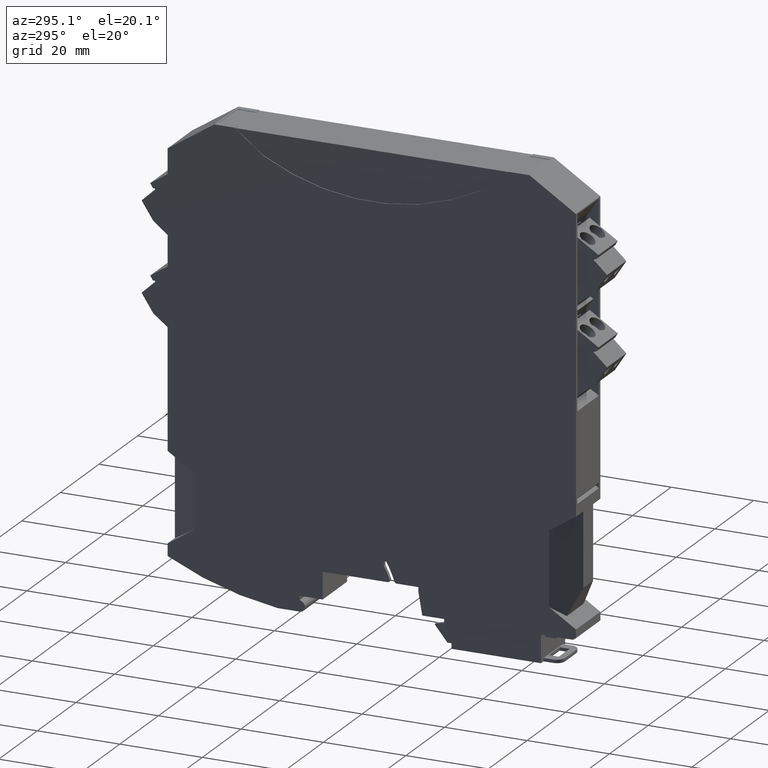
[diagram: clean part render]
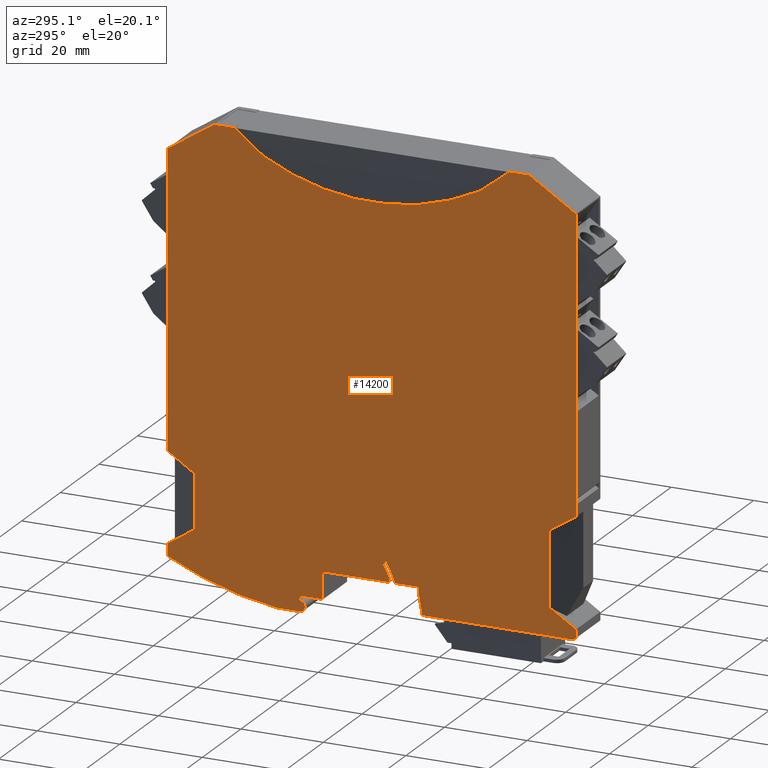
[diagram: same view with one face highlighted and labeled with its STEP entity id]
A machine part, auxiliary view. The second image highlights one B-rep face of the part: STEP entity #14200.
In plain terms, the highlighted planar face has unit normal (-1, -0, 0).
Its self-contained STEP definition (entity closure, byte-faithful):
#5430=CARTESIAN_POINT('',(6.89048818003357E-12,23.2192573011594,
108.200000000119));
#5440=VERTEX_POINT('',#5430);
#5470=CARTESIAN_POINT('',(-1.85949033948418E-11,49.5000000005202,
156.393092299449));
#5480=DIRECTION('',(-1.,5.21592700533538E-36,2.28384227807285E-18));
#5490=DIRECTION('',(4.191076862855E-30,-1.,1.83510136361891E-12));
#5500=AXIS2_PLACEMENT_3D('',#5470,#5480,#5490);
#5510=CIRCLE('',#5500,54.8930922995028);
#5520=CARTESIAN_POINT('',(-1.85949033948418E-11,75.7807426992575,
108.199999999779));
#5530=VERTEX_POINT('',#5520);
#5540=EDGE_CURVE('',#5530,#5440,#5510,.T.);
#5910=CARTESIAN_POINT('',(1.35926825350907E-11,16.3075724874902,
113.600000000005));
#5920=VERTEX_POINT('',#5910);
#5950=CARTESIAN_POINT('',(-1.85931270380024E-11,49.5000000003095,
87.6672334752695));
#5960=DIRECTION('',(-7.64112402769667E-13,0.788010753605531,
-0.615661475327183));
#5970=VECTOR('',#5960,1.);
#5980=LINE('',#5950,#5970);
#5990=EDGE_CURVE('',#5920,#5440,#5980,.T.);
#6270=CARTESIAN_POINT('',(-1.85931270380024E-11,49.5000000003095,
87.6672334752016));
#6280=DIRECTION('',(7.64109590626861E-13,-0.788010753607793,
-0.615661475324288));
#6290=VECTOR('',#6280,1.);
#6300=LINE('',#6270,#6290);
#6310=CARTESIAN_POINT('',(-5.09032815898536E-11,82.6924275133112,
113.599999999883));
#6320=VERTEX_POINT('',#6310);
#6330=EDGE_CURVE('',#6320,#5530,#6300,.T.);
#9680=CARTESIAN_POINT('',(-5.09032815898536E-11,82.6924275131028,0.));
#9690=DIRECTION('',(-1.77956922798273E-24,1.83510136361891E-12,1.));
#9700=VECTOR('',#9690,1.);
#9710=LINE('',#9680,#9700);
#9720=CARTESIAN_POINT('',(-5.09032815898536E-11,82.6924275133114,
113.699999999883));
#9730=VERTEX_POINT('',#9720);
#9740=EDGE_CURVE('',#6320,#9730,#9710,.T.);
#11120=CARTESIAN_POINT('',(-3.48290285501207E-11,66.2429808549896,
62.5853414744637));
#11130=DIRECTION('',(-1.,-9.69667423635606E-13,2.21456382961011E-30));
#11140=DIRECTION('',(9.69667423635606E-13,-1.,2.28383853642001E-18));
#11150=AXIS2_PLACEMENT_3D('',#11120,#11130,#11140);
#11160=PLANE('',#11150);
#11170=ORIENTED_EDGE('',*,*,#9740,.T.);
#11180=ORIENTED_EDGE('',*,*,#6330,.F.);
#11190=ORIENTED_EDGE('',*,*,#5540,.F.);
#11200=ORIENTED_EDGE('',*,*,#5990,.T.);
#11210=CARTESIAN_POINT('',(1.36797240202213E-11,16.3075724872818,0.));
#11220=DIRECTION('',(1.77956922798273E-24,-1.83510136361891E-12,-1.));
#11230=VECTOR('',#11220,1.);
#11240=LINE('',#11210,#11230);
#11250=CARTESIAN_POINT('',(1.36797240202213E-11,16.3075724874904,
113.700000000005));
#11260=VERTEX_POINT('',#11250);
#11270=EDGE_CURVE('',#11260,#5920,#11240,.T.);
#11280=ORIENTED_EDGE('',*,*,#11270,.T.);
#11290=CARTESIAN_POINT('',(-1.85931270380024E-11,49.5000000003095,
113.699999999944));
#11300=DIRECTION('',(-9.69667423635606E-13,1.,-1.83510136361891E-12));
#11310=VECTOR('',#11300,1.);
#11320=LINE('',#11290,#11310);
#11330=CARTESIAN_POINT('',(1.84474657771716E-11,11.3000000004245,
113.700000000014));
#11340=VERTEX_POINT('',#11330);
#11350=EDGE_CURVE('',#11340,#11260,#11320,.T.);
#11360=ORIENTED_EDGE('',*,*,#11350,.T.);
#11370=CARTESIAN_POINT('',(-1.85931270380024E-11,49.5000000003095,
138.507370059948));
#11380=DIRECTION('',(-8.13237121670311E-13,0.838670567946785,
0.544639035012931));
#11390=VECTOR('',#11380,1.);
#11400=LINE('',#11370,#11390);
#11410=CARTESIAN_POINT('',(2.94058111194317E-11,1.1974776725765E-10,
106.361694196724));
#11420=VERTEX_POINT('',#11410);
#11430=EDGE_CURVE('',#11420,#11340,#11400,.T.);
#11440=ORIENTED_EDGE('',*,*,#11430,.T.);
#11450=CARTESIAN_POINT('',(2.94058111194317E-11,-1.66863856065902E-10,
-45.6999999999939));
#11460=DIRECTION('',(1.82764232603561E-24,-1.88483935512212E-12,-1.));
#11470=VECTOR('',#11460,1.);
#11480=LINE('',#11450,#11470);
#11490=CARTESIAN_POINT('',(2.94058111194317E-11,-1.36282096718787E-11,
35.6000000000131));
#11500=VERTEX_POINT('',#11490);
#11510=EDGE_CURVE('',#11420,#11500,#11480,.T.);
#11520=ORIENTED_EDGE('',*,*,#11510,.F.);
#11530=CARTESIAN_POINT('',(-1.85931270380024E-11,49.5000000003095,
3.45432413649471));
#11540=DIRECTION('',(8.13239609405544E-13,-0.838670567945178,
0.544639035015406));
#11550=VECTOR('',#11540,1.);
#11560=LINE('',#11530,#11550);
#11570=CARTESIAN_POINT('',(2.31015206964003E-11,6.49999999902942,
31.378850644014));
#11580=VERTEX_POINT('',#11570);
#11590=EDGE_CURVE('',#11580,#11500,#11560,.T.);
#11600=ORIENTED_EDGE('',*,*,#11590,.T.);
#11610=CARTESIAN_POINT('',(-7.17125914206918E-10,6.50000000031153,
-45.6999999999939));
#11620=DIRECTION('',(-2.28383853641699E-18,-2.28383853641506E-18,-1.));
#11630=VECTOR('',#11620,1.);
#11640=LINE('',#11610,#11630);
#11650=CARTESIAN_POINT('',(2.31032970532397E-11,6.50000000031152,
13.4211493560257));
#11660=VERTEX_POINT('',#11650);
#11670=EDGE_CURVE('',#11580,#11660,#11640,.T.);
#11680=ORIENTED_EDGE('',*,*,#11670,.F.);
#11690=CARTESIAN_POINT('',(-1.85931270380024E-11,49.5000000003095,
41.3456758635122));
#11700=DIRECTION('',(-8.13237121670311E-13,0.83867056794547,
0.544639035014957));
#11710=VECTOR('',#11700,1.);
#11720=LINE('',#11690,#11710);
#11730=CARTESIAN_POINT('',(2.94058111194317E-11,-4.74784656034899E-11,
9.20000000000948));
#11740=VERTEX_POINT('',#11730);
#11750=EDGE_CURVE('',#11740,#11660,#11720,.T.);
#11760=ORIENTED_EDGE('',*,*,#11750,.T.);
#11770=CARTESIAN_POINT('',(2.94058111194317E-11,-1.62927449309791E-10,
-45.6999999999939));
#11780=DIRECTION('',(-1.77957860880231E-24,1.83510136361891E-12,1.));
#11790=VECTOR('',#11780,1.);
#11800=LINE('',#11770,#11790);
#11810=CARTESIAN_POINT('',(2.94058111194317E-11,-4.76489958600723E-11,
7.17454985767387));
#11820=VERTEX_POINT('',#11810);
#11830=EDGE_CURVE('',#11820,#11740,#11800,.T.);
#11840=ORIENTED_EDGE('',*,*,#11830,.T.);
#11850=CARTESIAN_POINT('',(-1.85931270380024E-11,49.5000000003095,
-24.9711260059805));
#11860=DIRECTION('',(8.13239609405544E-13,-0.838670567944297,
0.544639035016763));
#11870=VECTOR('',#11860,1.);
#11880=LINE('',#11850,#11870);
#11890=CARTESIAN_POINT('',(2.8697044740511E-11,0.730742699295661,
6.70000000004453));
#11900=VERTEX_POINT('',#11890);
#11910=EDGE_CURVE('',#11900,#11820,#11880,.T.);
#11920=ORIENTED_EDGE('',*,*,#11910,.T.);
#11930=CARTESIAN_POINT('',(-1.85931270380024E-11,49.5000000003095,
6.69999999995087));
#11940=DIRECTION('',(-9.69667423635606E-13,1.,-1.92039736359231E-12));
#11950=VECTOR('',#11940,1.);
#11960=LINE('',#11930,#11950);
#11970=CARTESIAN_POINT('',(-6.74660327604215E-12,37.2830997005598,
6.69999999997433));
#11980=VERTEX_POINT('',#11970);
#11990=EDGE_CURVE('',#11900,#11980,#11960,.T.);
#12000=ORIENTED_EDGE('',*,*,#11990,.F.);
#12010=CARTESIAN_POINT('',(-6.74660327604215E-12,37.2830997004592,
-45.6999999999939));
#12020=DIRECTION('',(1.86197355263083E-24,-1.92039736359231E-12,-1.));
#12030=VECTOR('',#12020,1.);
#12040=LINE('',#12010,#12030);
#12050=CARTESIAN_POINT('',(-6.74660327604215E-12,37.28309970056,
6.79999999997456));
#12060=VERTEX_POINT('',#12050);
#12070=EDGE_CURVE('',#12060,#11980,#12040,.T.);
#12080=ORIENTED_EDGE('',*,*,#12070,.T.);
#12090=CARTESIAN_POINT('',(2.22932783344731E-12,28.0259332132645,
-45.6999999999939));
#12100=DIRECTION('',(1.68376950330316E-13,-0.173648177668871,
-0.984807753011866));
#12110=VECTOR('',#12100,1.);
#12120=LINE('',#12090,#12110);
#12130=CARTESIAN_POINT('',(-7.63655805258168E-12,38.2000000002154,
11.9999999997522));
#12140=VERTEX_POINT('',#12130);
#12150=EDGE_CURVE('',#12140,#12060,#12120,.T.);
#12160=ORIENTED_EDGE('',*,*,#12150,.T.);
#12170=CARTESIAN_POINT('',(-7.63655805258168E-12,38.2000000001046,
-45.6999999999939));
#12180=DIRECTION('',(1.86197355263083E-24,-1.92039736359231E-12,-1.));
#12190=VECTOR('',#12180,1.);
#12200=LINE('',#12170,#12190);
#12210=CARTESIAN_POINT('',(-7.63655805258168E-12,38.2000000002177,
13.1999999999688));
#12220=VERTEX_POINT('',#12210);
#12230=EDGE_CURVE('',#12220,#12140,#12200,.T.);
#12240=ORIENTED_EDGE('',*,*,#12230,.T.);
#12250=CARTESIAN_POINT('',(-1.85931270380024E-11,49.5000000003095,
13.1999999999481));
#12260=DIRECTION('',(9.69667423635606E-13,-1.,1.83510136361891E-12));
#12270=VECTOR('',#12260,1.);
#12280=LINE('',#12250,#12270);
#12290=CARTESIAN_POINT('',(-1.28004273847182E-11,43.5257587984607,
13.1999999999591));
#12300=VERTEX_POINT('',#12290);
#12310=EDGE_CURVE('',#12300,#12220,#12280,.T.);
#12320=ORIENTED_EDGE('',*,*,#12310,.T.);
#12330=CARTESIAN_POINT('',(-1.28004273847182E-11,43.5257587984616,
13.6999999999591));
#12340=DIRECTION('',(1.,-5.21592700555424E-36,-2.28384227807285E-18));
#12350=DIRECTION('',(-4.191076862855E-30,1.,-1.83510136361891E-12));
#12360=AXIS2_PLACEMENT_3D('',#12330,#12340,#12350);
#12370=CIRCLE('',#12360,0.5);
#12380=CARTESIAN_POINT('',(-3.5562663924793E-11,43.9990297904329,
13.5387096773776));
#12390=VERTEX_POINT('',#12380);
#12400=EDGE_CURVE('',#12300,#12390,#12370,.T.);
#12410=ORIENTED_EDGE('',*,*,#12400,.F.);
#12420=CARTESIAN_POINT('',(-3.5562663924793E-11,67.0000000002411,
5.69999999991688));
#12430=DIRECTION('',(1.,-5.21592700555424E-36,-2.28384227807285E-18));
#12440=DIRECTION('',(-4.191076862855E-30,1.,-1.83510136361891E-12));
#12450=AXIS2_PLACEMENT_3D('',#12420,#12430,#12440);
#12460=CIRCLE('',#12450,24.3);
#12470=CARTESIAN_POINT('',(-3.5562663924793E-11,46.0136353793961,
17.9499999999554));
#12480=VERTEX_POINT('',#12470);
#12490=EDGE_CURVE('',#12480,#12390,#12460,.T.);
#12500=ORIENTED_EDGE('',*,*,#12490,.T.);
#12510=CARTESIAN_POINT('',(-1.85931270380024E-11,49.5000000003095,
17.949999999949));
#12520=DIRECTION('',(9.69667423635606E-13,-1.,1.83510136361891E-12));
#12530=VECTOR('',#12520,1.);
#12540=LINE('',#12510,#12530);
#12550=CARTESIAN_POINT('',(-1.57722723770348E-11,46.5900000002614,
17.9499999999543));
#12560=VERTEX_POINT('',#12550);
#12570=EDGE_CURVE('',#12560,#12480,#12540,.T.);
#12580=ORIENTED_EDGE('',*,*,#12570,.T.);
#12590=CARTESIAN_POINT('',(-1.57722723770348E-11,46.5900000001446,
-45.6999999999939));
#12600=DIRECTION('',(-1.77957860880231E-24,1.83510136361891E-12,1.));
#12610=VECTOR('',#12600,1.);
#12620=LINE('',#12590,#12610);
#12630=CARTESIAN_POINT('',(-1.57722723770348E-11,46.5900000002596,
16.939301579675));
#12640=VERTEX_POINT('',#12630);
#12650=EDGE_CURVE('',#12640,#12560,#12620,.T.);
#12660=ORIENTED_EDGE('',*,*,#12650,.T.);
#12670=CARTESIAN_POINT('',(-3.5562663924793E-11,67.0000000002411,
5.69999999991688));
#12680=DIRECTION('',(1.,-5.21592700555424E-36,-2.28384227807285E-18));
#12690=DIRECTION('',(-4.191076862855E-30,1.,-1.83510136361891E-12));
#12700=AXIS2_PLACEMENT_3D('',#12670,#12680,#12690);
#12710=CIRCLE('',#12700,23.3);
#12720=CARTESIAN_POINT('',(-1.48610013184225E-11,45.181379426191,
13.8754385964472));
#12730=VERTEX_POINT('',#12720);
#12740=EDGE_CURVE('',#12640,#12730,#12710,.T.);
#12750=ORIENTED_EDGE('',*,*,#12740,.F.);
#12760=CARTESIAN_POINT('',(-1.48610013184225E-11,45.6495901681234,
13.6999999999552));
#12770=DIRECTION('',(1.,-5.21592700555424E-36,-2.28384227807285E-18));
#12780=DIRECTION('',(-4.191076862855E-30,1.,-1.83510136361891E-12));
#12790=AXIS2_PLACEMENT_3D('',#12760,#12770,#12780);
#12800=CIRCLE('',#12790,0.5);
#12810=CARTESIAN_POINT('',(-1.48592249615831E-11,45.6495901681225,
13.1999999999552));
#12820=VERTEX_POINT('',#12810);
#12830=EDGE_CURVE('',#12730,#12820,#12800,.T.);
#12840=ORIENTED_EDGE('',*,*,#12830,.F.);
#12850=CARTESIAN_POINT('',(-1.85931270380024E-11,49.5000000003095,
13.1999999999481));
#12860=DIRECTION('',(9.69667423635606E-13,-1.,1.83510136361891E-12));
#12870=VECTOR('',#12860,1.);
#12880=LINE('',#12850,#12870);
#12890=CARTESIAN_POINT('',(-3.01323410667464E-11,61.4000000002542,
13.1999999999263));
#12900=VERTEX_POINT('',#12890);
#12910=EDGE_CURVE('',#12900,#12820,#12880,.T.);
#12920=ORIENTED_EDGE('',*,*,#12910,.T.);
#12930=CARTESIAN_POINT('',(-3.01323410667464E-11,61.4000000001461,
-45.6999999999939));
#12940=DIRECTION('',(-1.77957860880231E-24,1.83510136361891E-12,1.));
#12950=VECTOR('',#12940,1.);
#12960=LINE('',#12930,#12950);
#12970=CARTESIAN_POINT('',(-3.01323410667464E-11,61.4000000002423,
6.69999999992885));
#12980=VERTEX_POINT('',#12970);
#12990=EDGE_CURVE('',#12980,#12900,#12960,.T.);
#13000=ORIENTED_EDGE('',*,*,#12990,.T.);
#13010=CARTESIAN_POINT('',(-1.85931270380024E-11,49.5000000003095,
6.69999999994959));
#13020=DIRECTION('',(9.69667423635606E-13,-1.,1.7427308079701E-12));
#13030=VECTOR('',#13020,1.);
#13040=LINE('',#13010,#13030);
#13050=CARTESIAN_POINT('',(-3.5562663924793E-11,67.0000000002416,
6.69999999991909));
#13060=VERTEX_POINT('',#13050);
#13070=EDGE_CURVE('',#13060,#12980,#13040,.T.);
#13080=ORIENTED_EDGE('',*,*,#13070,.T.);
#13090=CARTESIAN_POINT('',(-3.5562663924793E-11,67.0000000001454,
-45.6999999999939));
#13100=DIRECTION('',(-1.77957860880231E-24,1.83510136361891E-12,1.));
#13110=VECTOR('',#13100,1.);
#13120=LINE('',#13090,#13110);
#13130=CARTESIAN_POINT('',(-3.5562663924793E-11,67.0000000002397,
5.6999999999156));
#13140=VERTEX_POINT('',#13130);
#13150=EDGE_CURVE('',#13140,#13060,#13120,.T.);
#13160=ORIENTED_EDGE('',*,*,#13150,.T.);
#13170=CARTESIAN_POINT('',(-1.85931270380024E-11,49.5000000003095,
-2.4603840177252));
#13180=DIRECTION('',(-8.7879606995017E-13,0.906307787037426,
0.422618261739036));
#13190=VECTOR('',#13180,1.);
#13200=LINE('',#13170,#13190);
#13210=CARTESIAN_POINT('',(-3.55147022901292E-11,66.4217271730634,
5.43034695210164));
#13220=VERTEX_POINT('',#13210);
#13230=EDGE_CURVE('',#13220,#13140,#13200,.T.);
#13240=ORIENTED_EDGE('',*,*,#13230,.T.);
#13250=CARTESIAN_POINT('',(-3.55147022901292E-11,66.9500000002371,
4.29746221830483));
#13260=DIRECTION('',(1.,-5.21592700555424E-36,-2.28384227807285E-18));
#13270=DIRECTION('',(2.28384227807285E-18,1.83510136361891E-12,1.));
#13280=AXIS2_PLACEMENT_3D('',#13250,#13260,#13270);
#13290=CIRCLE('',#13280,1.25);
#13300=CARTESIAN_POINT('',(-3.43014505688188E-11,65.7000000002371,
4.29746221830715));
#13310=VERTEX_POINT('',#13300);
#13320=EDGE_CURVE('',#13220,#13310,#13290,.T.);
#13330=ORIENTED_EDGE('',*,*,#13320,.F.);
#13340=CARTESIAN_POINT('',(-3.43014505688188E-11,65.7000000001454,
-45.6999999999939));
#13350=DIRECTION('',(-1.77957860880231E-24,1.83510136361891E-12,1.));
#13360=VECTOR('',#13350,1.);
#13370=LINE('',#13340,#13360);
#13380=CARTESIAN_POINT('',(-3.43014505688188E-11,65.700000000237,
4.24999999991913));
#13390=VERTEX_POINT('',#13380);
#13400=EDGE_CURVE('',#13390,#13310,#13370,.T.);
#13410=ORIENTED_EDGE('',*,*,#13400,.T.);
#13420=CARTESIAN_POINT('',(-3.55147022901292E-11,66.950000000237,
4.24999999991681));
#13430=DIRECTION('',(1.,-5.21592700555424E-36,-2.28384227807285E-18));
#13440=DIRECTION('',(2.28384227807285E-18,1.93457734662532E-12,1.));
#13450=AXIS2_PLACEMENT_3D('',#13420,#13430,#13440);
#13460=CIRCLE('',#13450,1.25);
#13470=CARTESIAN_POINT('',(-3.55147022901292E-11,66.9500000002348,
2.99999999991678));
#13480=VERTEX_POINT('',#13470);
#13490=EDGE_CURVE('',#13390,#13480,#13460,.T.);
#13500=ORIENTED_EDGE('',*,*,#13490,.F.);
#13510=CARTESIAN_POINT('',(-1.85931270380024E-11,49.5000000003095,
2.99999999994881));
#13520=DIRECTION('',(9.69667423635606E-13,-1.,1.83510136361891E-12));
#13530=VECTOR('',#13520,1.);
#13540=LINE('',#13510,#13530);
#13550=CARTESIAN_POINT('',(-4.07638367505569E-11,72.364694335678,
2.99999999990685));
#13560=VERTEX_POINT('',#13550);
#13570=EDGE_CURVE('',#13560,#13480,#13540,.T.);
#13580=ORIENTED_EDGE('',*,*,#13570,.T.);
#13590=CARTESIAN_POINT('',(-3.16848769443823E-11,63.0000000001872,
82.4499999999246));
#13600=DIRECTION('',(-1.,5.21592700555424E-36,2.28384227807285E-18));
#13610=DIRECTION('',(4.191076862855E-30,-1.,1.83510136361891E-12));
#13620=AXIS2_PLACEMENT_3D('',#13590,#13600,#13610);
#13630=CIRCLE('',#13620,80.);
#13640=CARTESIAN_POINT('',(-6.65920651954366E-11,99.0000000003849,
11.0077156020573));
#13650=VERTEX_POINT('',#13640);
#13660=EDGE_CURVE('',#13650,#13560,#13630,.T.);
#13670=ORIENTED_EDGE('',*,*,#13660,.T.);
#13680=CARTESIAN_POINT('',(-6.65920651954366E-11,99.0000000005153,
-45.6999999999939));
#13690=DIRECTION('',(-2.22950086395226E-24,2.29927362408618E-12,-1.));
#13700=VECTOR('',#13690,1.);
#13710=LINE('',#13680,#13700);
#13720=CARTESIAN_POINT('',(-6.65920651954366E-11,99.0000000003781,
14.0000000001642));
#13730=VERTEX_POINT('',#13720);
#13740=EDGE_CURVE('',#13730,#13650,#13710,.T.);
#13750=ORIENTED_EDGE('',*,*,#13740,.T.);
#13760=CARTESIAN_POINT('',(-1.85931270380024E-11,49.5000000003095,
46.1456758635003));
#13770=DIRECTION('',(-8.13211853829928E-13,0.838670567945309,
-0.544639035015204));
#13780=VECTOR('',#13770,1.);
#13790=LINE('',#13760,#13780);
#13800=CARTESIAN_POINT('',(-6.02895511292445E-11,92.5000000014452,
18.2211493559957));
#13810=VERTEX_POINT('',#13800);
#13820=EDGE_CURVE('',#13810,#13730,#13790,.T.);
#13830=ORIENTED_EDGE('',*,*,#13820,.T.);
#13840=CARTESIAN_POINT('',(-7.17125914206918E-10,92.5000000003076,
-45.6999999999939));
#13850=DIRECTION('',(-2.28383853640871E-18,-2.28383853641506E-18,-1.));
#13860=VECTOR('',#13850,1.);
#13870=LINE('',#13840,#13860);
#13880=CARTESIAN_POINT('',(-6.02895511292445E-11,92.5000000014452,
31.3788506440161));
#13890=VERTEX_POINT('',#13880);
#13900=EDGE_CURVE('',#13890,#13810,#13870,.T.);
#13910=ORIENTED_EDGE('',*,*,#13900,.T.);
#13920=CARTESIAN_POINT('',(-1.85931270380024E-11,49.5000000003095,
3.45432413652381));
#13930=DIRECTION('',(8.13237121670311E-13,-0.838670567945419,
-0.544639035015035));
#13940=VECTOR('',#13930,1.);
#13950=LINE('',#13920,#13940);
#13960=CARTESIAN_POINT('',(-6.65920651954366E-11,99.0000000003284,
35.5999999998135));
#13970=VERTEX_POINT('',#13960);
#13980=EDGE_CURVE('',#13970,#13890,#13950,.T.);
#13990=ORIENTED_EDGE('',*,*,#13980,.T.);
#14000=CARTESIAN_POINT('',(-6.65920651954366E-11,99.0000000001657,
106.361694196857));
#14010=VERTEX_POINT('',#14000);
#14020=EDGE_CURVE('',#14010,#13970,#13710,.T.);
#14030=ORIENTED_EDGE('',*,*,#14020,.T.);
#14040=CARTESIAN_POINT('',(-1.85931270380024E-11,49.5000000003095,
138.507370060177));
#14050=DIRECTION('',(-8.13239609405544E-13,0.838670567944371,
-0.544639035016649));
#14060=VECTOR('',#14050,1.);
#14070=LINE('',#14040,#14060);
#14080=CARTESIAN_POINT('',(-5.56337198531764E-11,87.700000000391,
113.699999999874));
#14090=VERTEX_POINT('',#14080);
#14100=EDGE_CURVE('',#14090,#14010,#14070,.T.);
#14110=ORIENTED_EDGE('',*,*,#14100,.T.);
#14120=CARTESIAN_POINT('',(-1.85931270380024E-11,49.5000000003095,
113.699999999944));
#14130=DIRECTION('',(9.69667423635606E-13,-1.,1.83510136361891E-12));
#14140=VECTOR('',#14130,1.);
#14150=LINE('',#14120,#14140);
#14160=EDGE_CURVE('',#14090,#9730,#14150,.T.);
#14170=ORIENTED_EDGE('',*,*,#14160,.F.);
#14180=EDGE_LOOP('',(#14170,#14110,#14030,#13990,#13910,#13830,#13750,
#13670,#13580,#13500,#13410,#13330,#13240,#13160,#13080,#13000,#12920,
#12840,#12750,#12660,#12580,#12500,#12410,#12320,#12240,#12160,#12080,
#12000,#11920,#11840,#11760,#11680,#11600,#11520,#11440,#11360,#11280,
#11200,#11190,#11180,#11170));
#14190=FACE_OUTER_BOUND('',#14180,.T.);
#14200=ADVANCED_FACE('',(#14190),#11160,.T.);